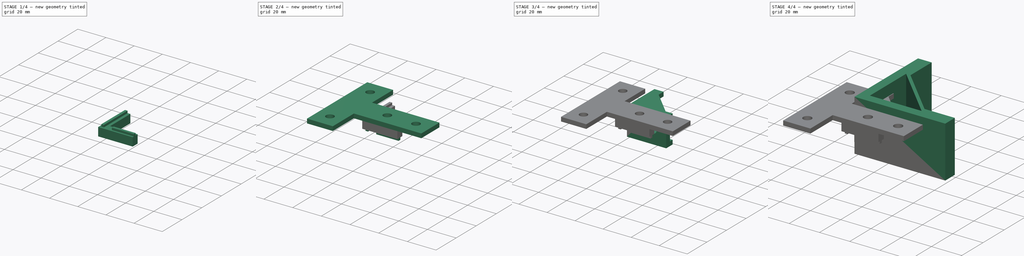
[diagram: build sequence overview — one tinted view per stage of 4, left to right]
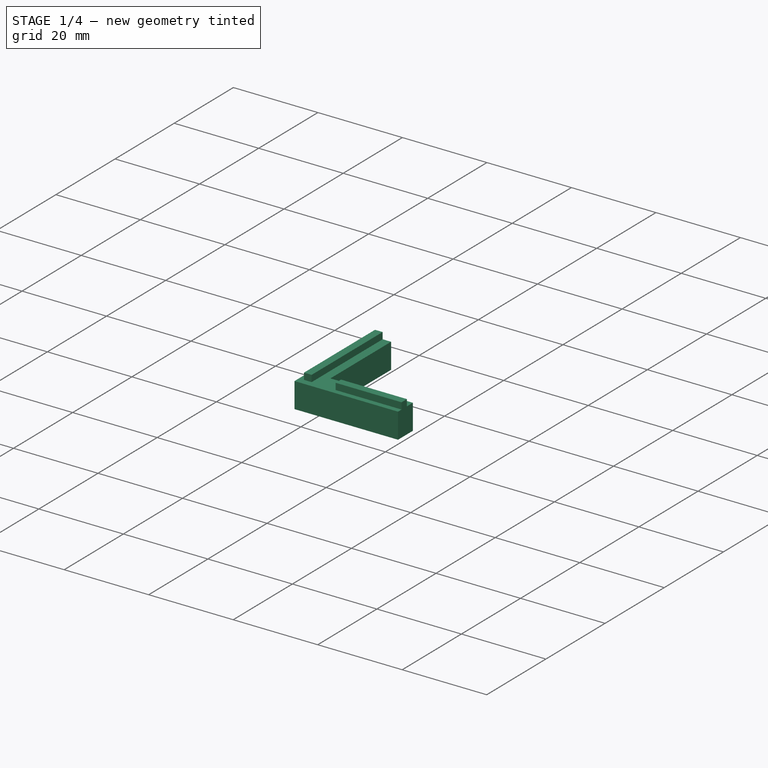
[diagram: stage 1 of 4 — iso view after this stage's code; geometry added in this stage tinted green]
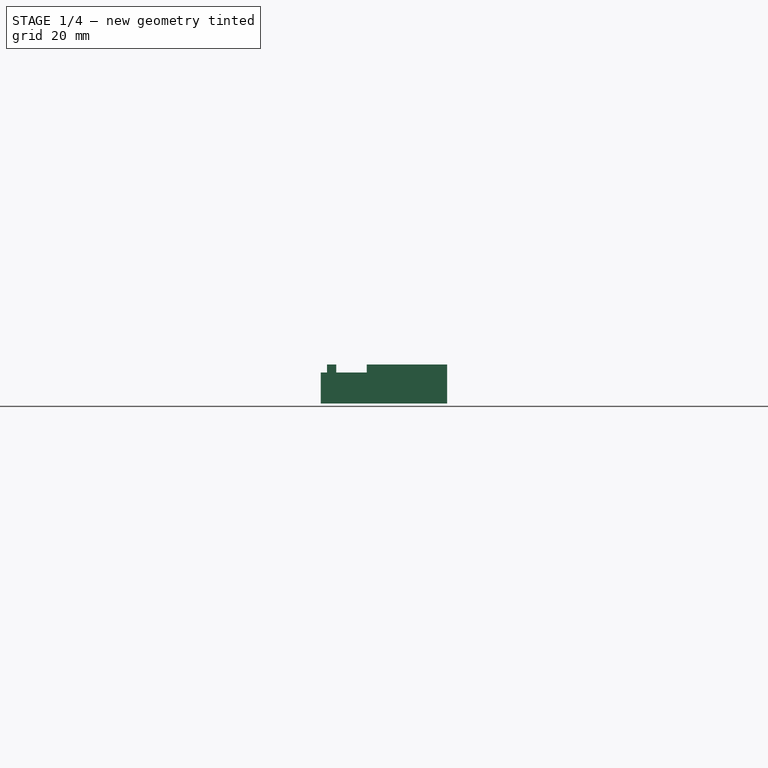
[diagram: stage 1 of 4 — front view after this stage's code; geometry added in this stage tinted green]
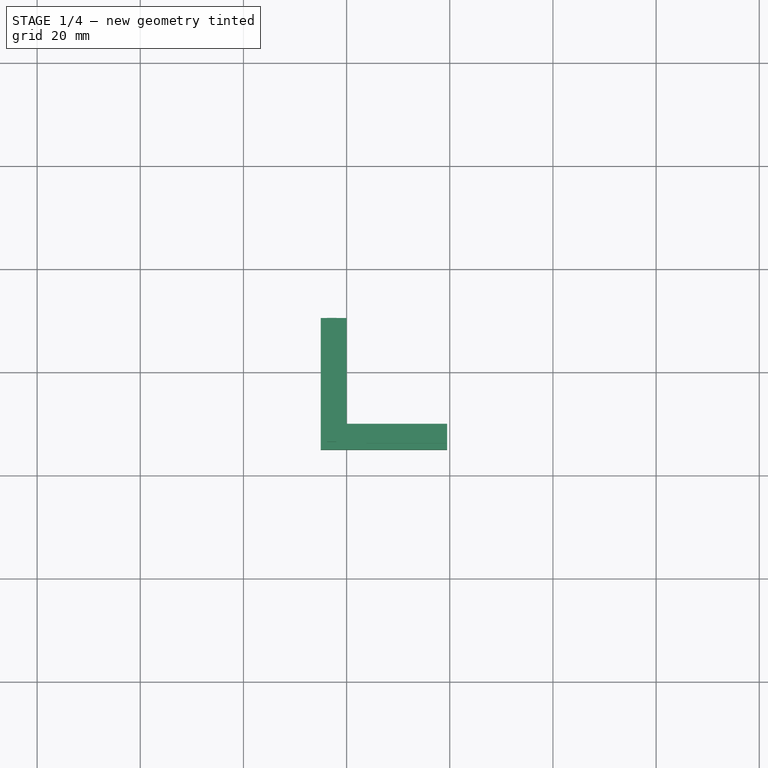
[diagram: stage 1 of 4 — top view after this stage's code; geometry added in this stage tinted green]
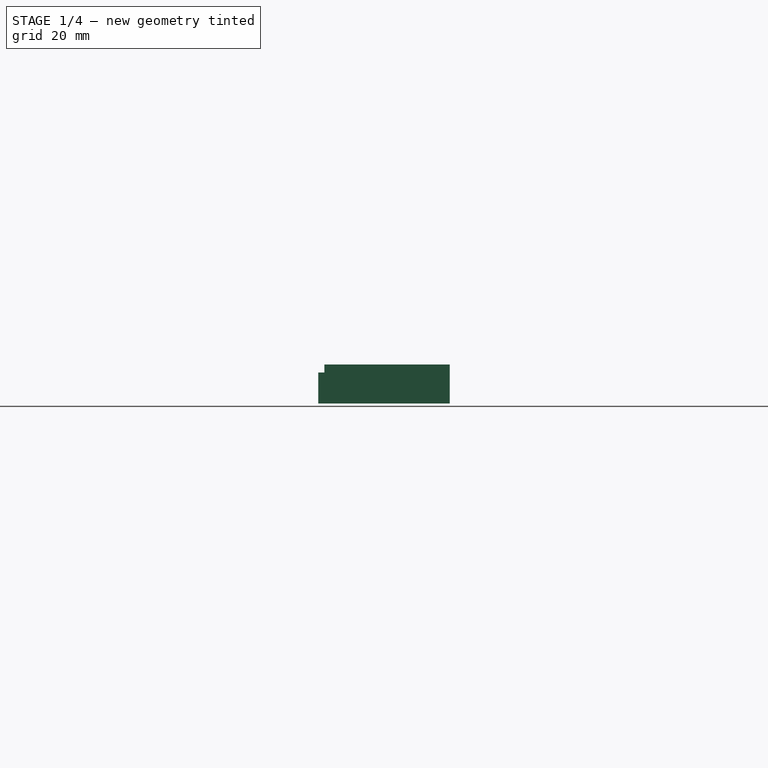
[diagram: stage 1 of 4 — right view after this stage's code; geometry added in this stage tinted green]
FCSTD DOCUMENT  (FreeCAD 1.0R39109 (Git))
Label: 2020 Parts
License: All rights reserved
objects: Sketcher::SketchObject×7, PartDesign::Pad×5, PartDesign::Body×4, PartDesign::Pocket×2, PartDesign::Mirrored×2, PartDesign::Plane×1
note: 44 computed .brp shape members not serialized (recipe doc carries the construction recipe); baked Part::Feature solids carry a one-line shape summary decoded from their .brp

FEATURE [PartDesign::Body] Body002  label="TPDD-2020T-"
  AllowCompound = true
  Group = -> [Sketch004,Pad002]
  Origin = -> Origin002
  Tip = -> Pad002
FEATURE [Sketcher::SketchObject] Sketch005
  ArcFitTolerance = 1e-06
  AttachmentSupport = -> [XY_Plane003]
  FullyConstrained = true
  MakeInternals = false
  MapMode = 5
  sketch-geometry (6):
    g0: LineSegment StartX=-5 StartY=30.5 StartZ=0 EndX=-5 EndY=5 EndZ=0
    g1: LineSegment StartX=-5 StartY=5 StartZ=0 EndX=19.5 EndY=5 EndZ=0
    g2: LineSegment StartX=19.5 StartY=5 StartZ=0 EndX=19.5 EndY=10 EndZ=0
    g3: LineSegment StartX=19.5 StartY=10 StartZ=0 EndX=0 EndY=10 EndZ=0
    g4: LineSegment StartX=0 StartY=10 StartZ=0 EndX=0 EndY=30.5 EndZ=0
    g5: LineSegment StartX=0 StartY=30.5 StartZ=0 EndX=-5 EndY=30.5 EndZ=0
  constraints (18):
    c: Vertical(g0)
    c: Coincident(g0,g1)
    c: Horizontal(g1)
    c: Coincident(g1,g2)
    c: Vertical(g2)
    c: Coincident(g2,g3)
    c: Coincident(g3,g4)
    c: Coincident(g4,g5)
    c: Coincident(g5,g0)
    c: Horizontal(g5)
    c: Vertical(g4)
    c: Horizontal(g3)
    c: DistanceY(g2,g2) = 5
    c: Equal(g2,g5)
    c: DistanceX(g1,g1) = 24.5
    c: DistanceY(g0,g0) = 25.5
    c: DistanceY(g-1,g2) = 10
    c: PointOnObject(g3,g-2)
FEATURE [PartDesign::Pad] Pad003
  Direction = (0,0,1)
  Length = 6
  Length2 = 10
  Midplane = true
  Profile = -> Sketch005
  ReferenceAxis = -> Sketch005 [N_Axis]
  Suppressed = false
  Type = 0
FEATURE [Sketcher::SketchObject] Sketch006
  ArcFitTolerance = 1e-06
  AttachmentSupport = -> [Pad003]
  ExternalGeometry = -> [Sketch005]
  FullyConstrained = true
  MakeInternals = false
  MapMode = 5
  Placement = pos=(0,0,3) rot=(0,0,1;0rad)
  sketch-geometry (8):
    g0: LineSegment StartX=-3.8 StartY=30.5 StartZ=0 EndX=-2 EndY=30.5 EndZ=0
    g1: LineSegment StartX=-2 StartY=30.5 StartZ=0 EndX=-2 EndY=6.5 EndZ=0
    g2: LineSegment StartX=-2 StartY=6.5 StartZ=0 EndX=-3.8 EndY=6.5 EndZ=0
    g3: LineSegment StartX=-3.8 StartY=6.5 StartZ=0 EndX=-3.8 EndY=30.5 EndZ=0
    g4: LineSegment StartX=3.9 StartY=8 StartZ=0 EndX=3.9 EndY=6.2 EndZ=0
    g5: LineSegment StartX=3.9 StartY=6.2 StartZ=0 EndX=19.5 EndY=6.2 EndZ=0
    g6: LineSegment StartX=19.5 StartY=6.2 StartZ=0 EndX=19.5 EndY=8 EndZ=0
    g7: LineSegment StartX=19.5 StartY=8 StartZ=0 EndX=3.9 EndY=8 EndZ=0
  constraints (24):
    c: Coincident(g0,g1)
    c: Coincident(g1,g2)
    c: Coincident(g2,g3)
    c: Coincident(g3,g0)
    c: Horizontal(g0)
    c: Horizontal(g2)
    c: Vertical(g1)
    c: Vertical(g3)
    c: Coincident(g4,g5)
    c: Coincident(g5,g6)
    c: Coincident(g6,g7)
    c: Coincident(g7,g4)
    c: Vertical(g4)
    c: Vertical(g6)
    c: Horizontal(g5)
    c: Horizontal(g7)
    c: Equal(g0,g6)
    c: Horizontal(g0,g-3)
    c: DistanceY(g6,g-4) = 2
    c: Distance(g6,g6) = 1.8
    c: Vertical(g6,g-4)
    c: DistanceX(g5,g5) = 15.6
    c: DistanceY(g1,g1) = 24
    c: Distance(g0,g-3) = 2
FEATURE [PartDesign::Pad] Pad004
  BaseFeature = -> Pad003
  Direction = (0,0,1)
  Length = 1.55
  Length2 = 10
  Profile = -> Sketch006
  ReferenceAxis = -> Sketch006 [N_Axis]
  Suppressed = false
  Type = 0
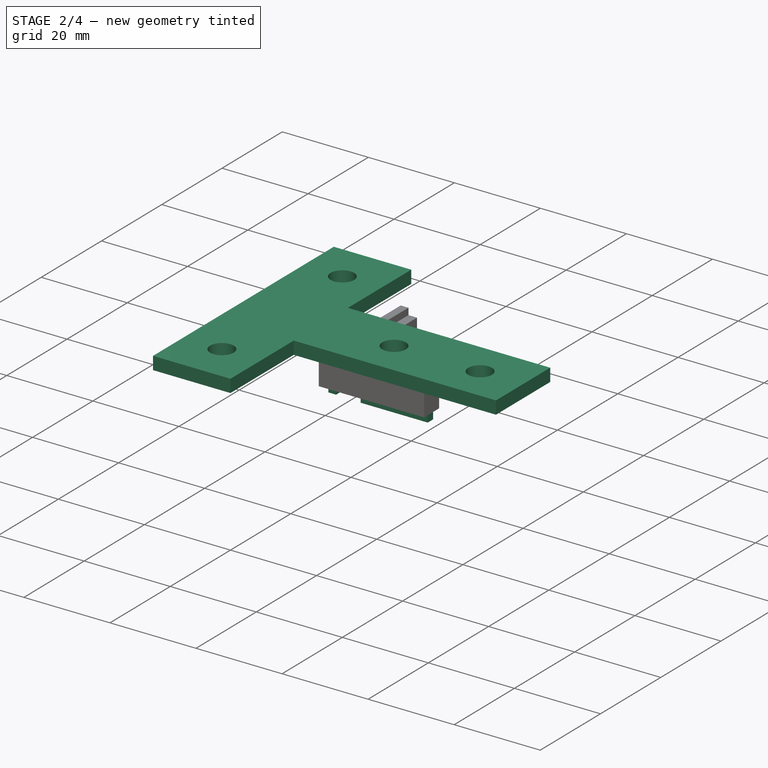
[diagram: stage 2 of 4 — iso view after this stage's code; geometry added in this stage tinted green]
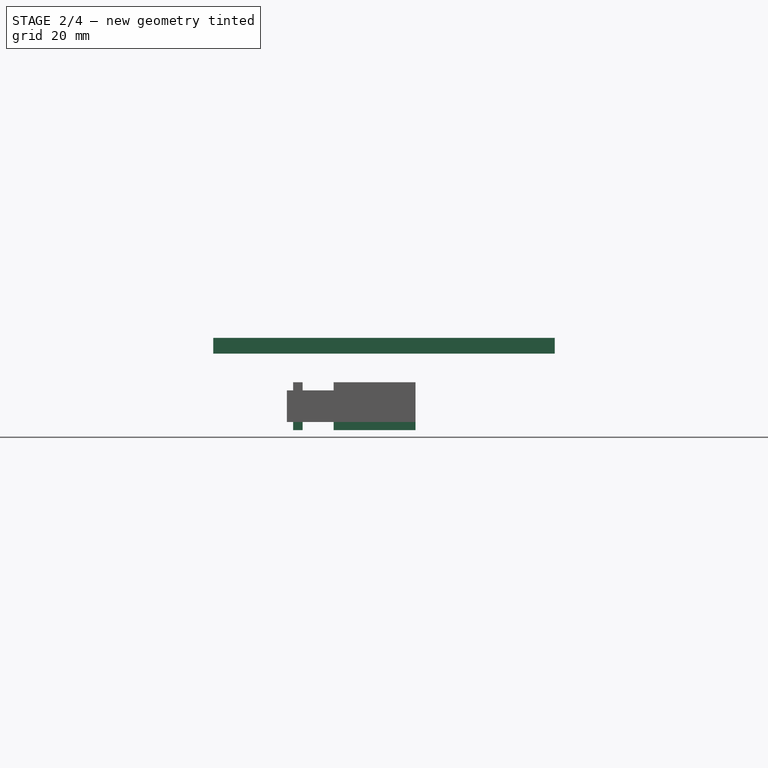
[diagram: stage 2 of 4 — front view after this stage's code; geometry added in this stage tinted green]
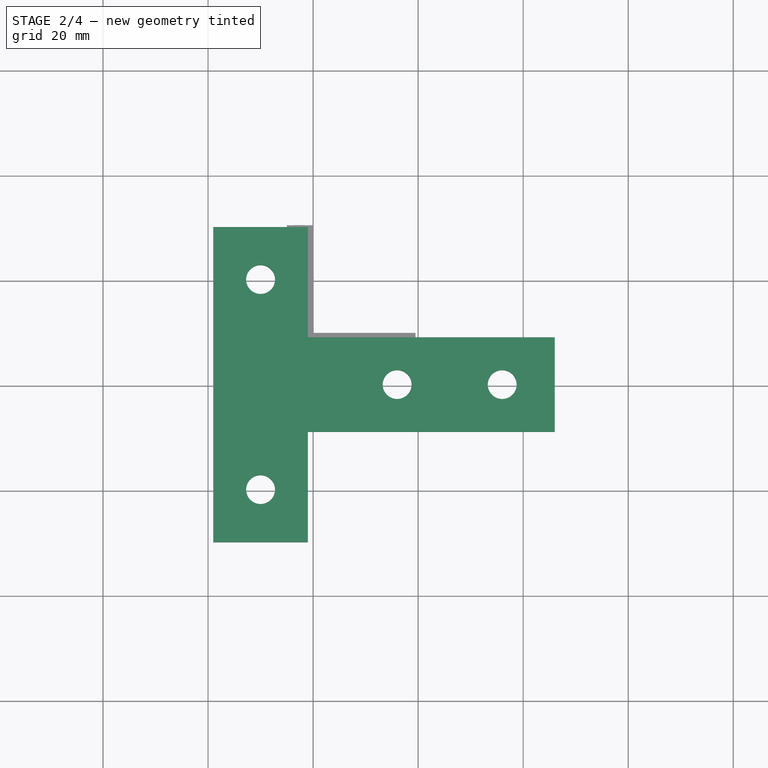
[diagram: stage 2 of 4 — top view after this stage's code; geometry added in this stage tinted green]
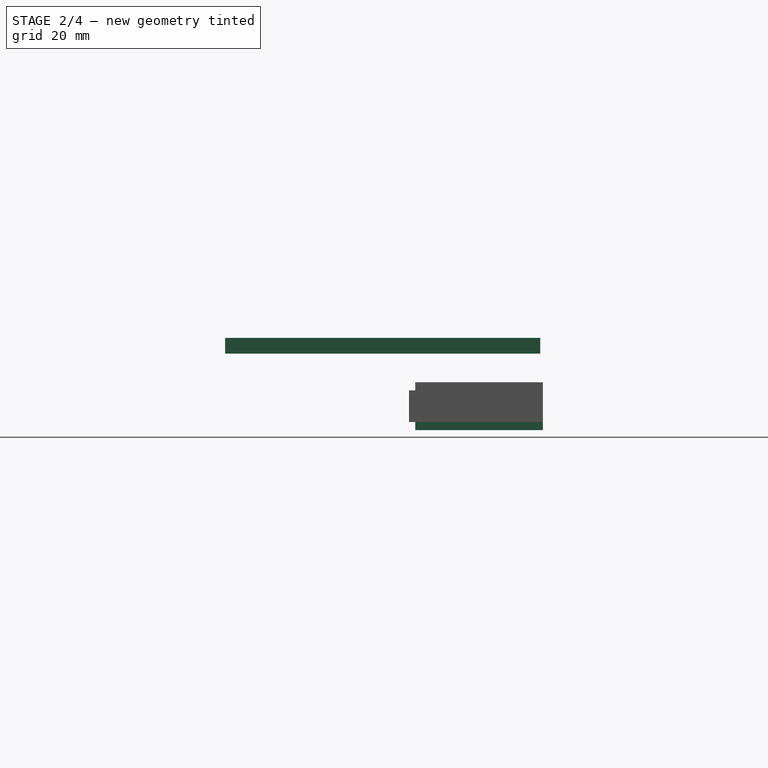
[diagram: stage 2 of 4 — right view after this stage's code; geometry added in this stage tinted green]
FEATURE [PartDesign::Body] Body001  label="TPDB-2020-"
  AllowCompound = true
  Group = -> [Sketch001,Pad001,Sketch002,Pocket,Sketch003,Pocket001,DatumPlane,Mirrored]
  Origin = -> Origin001
  Tip = -> Mirrored
FEATURE [Sketcher::SketchObject] Sketch004
  ArcFitTolerance = 1e-06
  AttachmentOffset = pos=(0,0,10) rot=(0,0,1;0rad)
  AttachmentSupport = -> [XY_Plane002]
  FullyConstrained = true
  MakeInternals = false
  MapMode = 5
  Placement = pos=(0,0,10) rot=(0,0,1;0rad)
  sketch-geometry (14):
    g0: LineSegment StartX=-19 StartY=30 StartZ=0 EndX=-1 EndY=30 EndZ=0
    g1: LineSegment StartX=-1 StartY=30 StartZ=0 EndX=-1 EndY=9 EndZ=0
    g2: LineSegment StartX=-1 StartY=9 StartZ=0 EndX=46 EndY=9 EndZ=0
    g3: LineSegment StartX=46 StartY=9 StartZ=0 EndX=46 EndY=-9 EndZ=0
    g4: LineSegment StartX=46 StartY=-9 StartZ=0 EndX=-1 EndY=-9 EndZ=0
    g5: LineSegment StartX=-1 StartY=-9 StartZ=0 EndX=-1 EndY=-30 EndZ=0
    g6: LineSegment StartX=-1 StartY=-30 StartZ=0 EndX=-19 EndY=-30 EndZ=0
    g7: LineSegment StartX=-19 StartY=-30 StartZ=0 EndX=-19 EndY=30 EndZ=0
    g8: GeomPoint X=-19 Y=0 Z=0
    g9: Circle CenterX=-10 CenterY=20 CenterZ=0 NormalX=0 NormalY=0 NormalZ=1 AngleXU=0 Radius=2.75
    g10: Circle CenterX=-10 CenterY=-20 CenterZ=0 NormalX=0 NormalY=0 NormalZ=1 AngleXU=0 Radius=2.75
    g11: Circle CenterX=16 CenterY=0 CenterZ=0 NormalX=0 NormalY=0 NormalZ=1 AngleXU=0 Radius=2.75
    g12: Circle CenterX=36 CenterY=0 CenterZ=0 NormalX=0 NormalY=0 NormalZ=1 AngleXU=0 Radius=2.75
    g13: LineSegment [constr] StartX=-10 StartY=30 StartZ=0 EndX=-10 EndY=-30 EndZ=0
  constraints (39):
    c: Horizontal(g0)
    c: Coincident(g0,g1)
    c: Coincident(g1,g2)
    c: Coincident(g2,g3)
    c: Vertical(g3)
    c: Coincident(g3,g4)
    c: Horizontal(g4)
    c: Coincident(g4,g5)
    c: Coincident(g5,g6)
    c: Horizontal(g6)
    c: Coincident(g6,g7)
    c: Coincident(g7,g0)
    c: Vertical(g7)
    c: Vertical(g1)
    c: Vertical(g5)
    c: Horizontal(g2)
    c: Vertical(g1,g4)
    c: Equal(g0,g3)
    c: Distance(g7,g7) = 60
    c: Distance(g0,g0) = 18
    c: DistanceX(g6,g3) = 65
    c: Equal(g5,g1)
    c: Symmetric(g7,g7,g8)
    c: PointOnObject(g8,g-1)
    c: Distance(g0,g-2) = 1
    c: PointOnObject(g11,g-1)
    c: PointOnObject(g12,g-1)
    c: Equal(g9,g11)
    c: Equal(g11,g12)
    c: Equal(g12,g10)
    c: Symmetric(g0,g0,g13)
    c: Symmetric(g6,g6,g13)
    c: PointOnObject(g10,g13)
    c: PointOnObject(g9,g13)
    c: Distance(g9,g-1) = 20
    c: Distance(g10,g-1) = 20
    c: DistanceX(g11,g12) = 20
    c: Distance(g11,g7) = 35
    c: Diameter(g12) = 5.5
FEATURE [PartDesign::Pad] Pad002
  Direction = (0,0,1)
  Length = 3
  Length2 = 10
  Profile = -> Sketch004
  ReferenceAxis = -> Sketch004 [N_Axis]
  Suppressed = false
  Type = 0
FEATURE [PartDesign::Mirrored] Mirrored001
  BaseFeature = -> Pad004
  MirrorPlane = -> XY_Plane003
  Originals = -> [Pad004]
  Suppressed = false
  TransformMode = 0
FEATURE [PartDesign::Body] Body003  label="TPDG-D5-"
  AllowCompound = true
  Group = -> [Sketch005,Pad003,Sketch006,Pad004,Mirrored001]
  Origin = -> Origin003
  Tip = -> Mirrored001
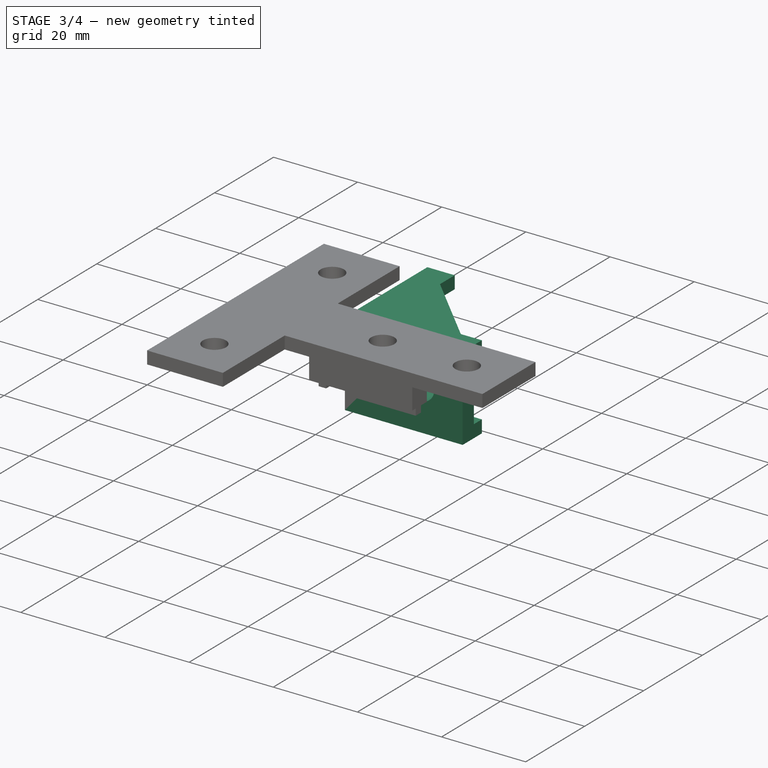
[diagram: stage 3 of 4 — iso view after this stage's code; geometry added in this stage tinted green]
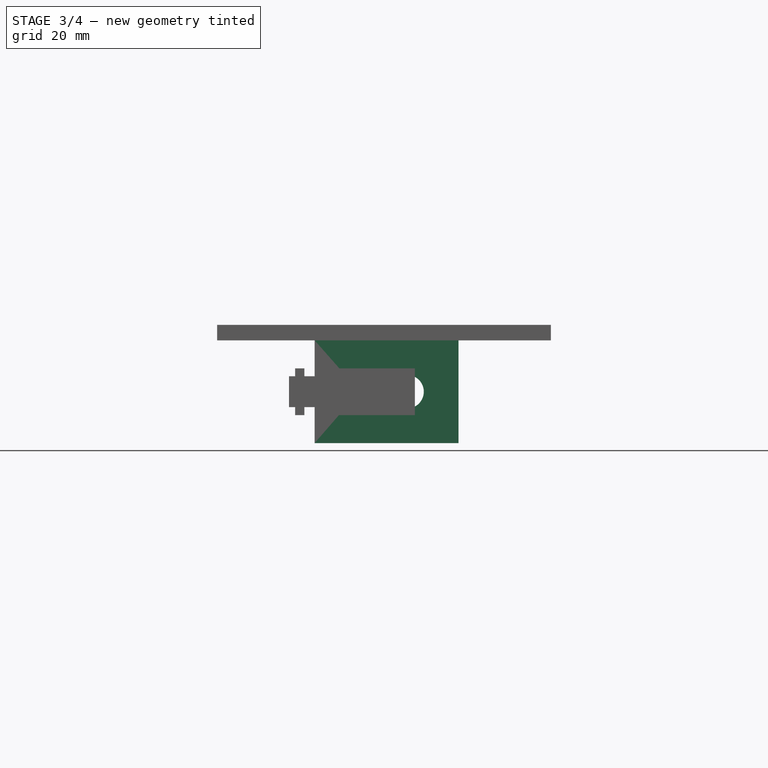
[diagram: stage 3 of 4 — front view after this stage's code; geometry added in this stage tinted green]
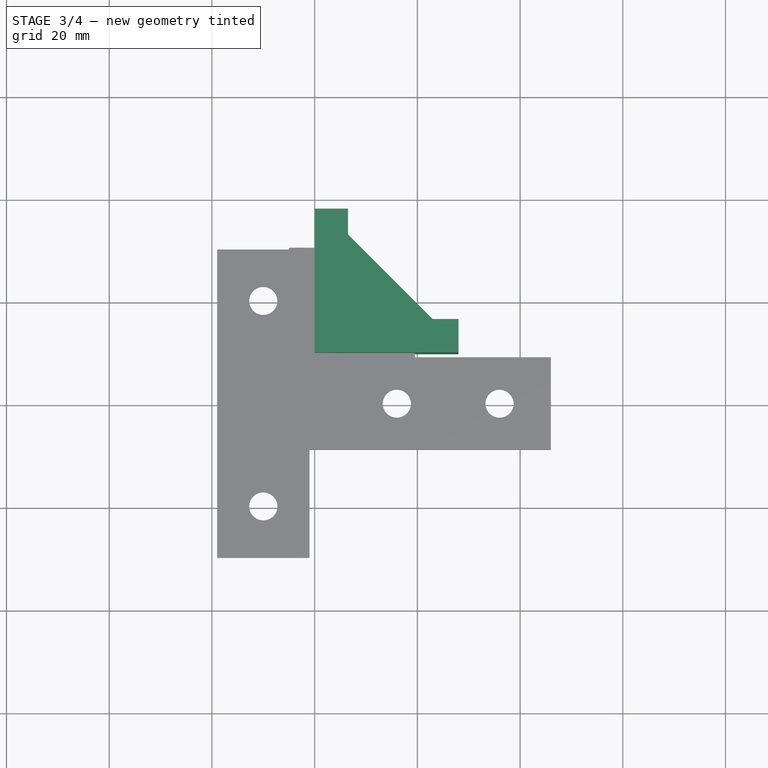
[diagram: stage 3 of 4 — top view after this stage's code; geometry added in this stage tinted green]
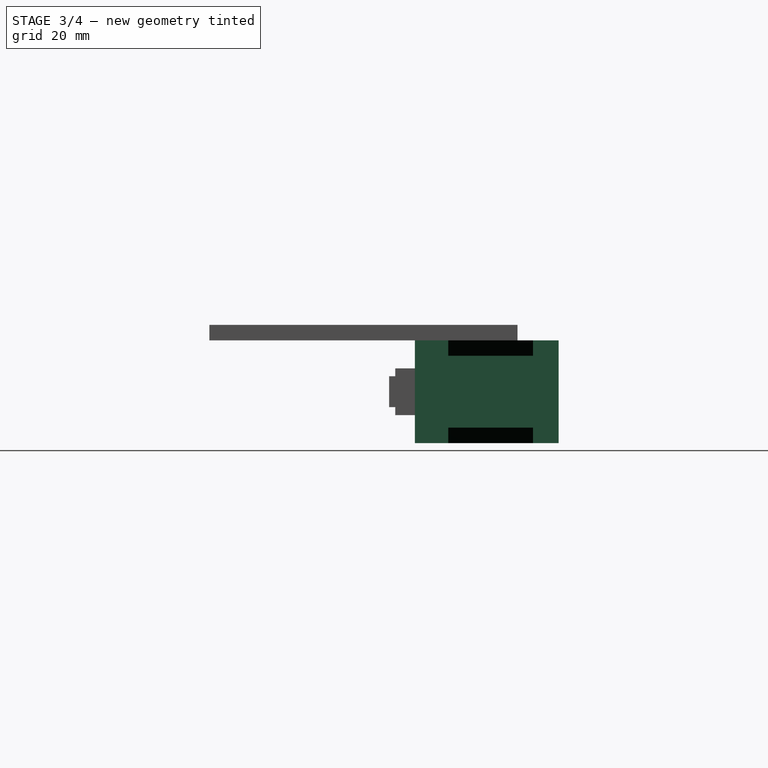
[diagram: stage 3 of 4 — right view after this stage's code; geometry added in this stage tinted green]
FEATURE [PartDesign::Body] Body  label="TPDC-6034-"
  AllowCompound = true
  Group = -> [Sketch,Pad]
  Origin = -> Origin
  Tip = -> Pad
FEATURE [Sketcher::SketchObject] Sketch001
  ArcFitTolerance = 1e-06
  AttachmentSupport = -> [XY_Plane001]
  FullyConstrained = true
  MakeInternals = false
  MapMode = 5
  sketch-geometry (9):
    g0: LineSegment StartX=0 StartY=10 StartZ=0 EndX=28 EndY=10 EndZ=0
    g1: LineSegment [constr] StartX=28 StartY=10 StartZ=0 EndX=28 EndY=38 EndZ=0
    g2: LineSegment [constr] StartX=28 StartY=38 StartZ=0 EndX=0 EndY=38 EndZ=0
    g3: LineSegment StartX=0 StartY=38 StartZ=0 EndX=0 EndY=10 EndZ=0
    g4: LineSegment StartX=0 StartY=38 StartZ=0 EndX=6.5 EndY=38 EndZ=0
    g5: LineSegment StartX=6.5 StartY=38 StartZ=0 EndX=6.5 EndY=33 EndZ=0
    g6: LineSegment StartX=6.5 StartY=33 StartZ=0 EndX=23 EndY=16.5 EndZ=0
    g7: LineSegment StartX=23 StartY=16.5 StartZ=0 EndX=28 EndY=16.5 EndZ=0
    g8: LineSegment StartX=28 StartY=16.5 StartZ=0 EndX=28 EndY=10 EndZ=0
  constraints (26):
    c: Coincident(g0,g1)
    c: Coincident(g1,g2)
    c: Coincident(g2,g3)
    c: Coincident(g3,g0)
    c: Horizontal(g0)
    c: Horizontal(g2)
    c: Vertical(g1)
    c: Vertical(g3)
    c: PointOnObject(g0,g-2)
    c: Equal(g0,g3)
    c: Distance(g0,g0) = 28
    c: DistanceY(g-1,g0) = 10
    c: Coincident(g2,g4)
    c: PointOnObject(g4,g2)
    c: Coincident(g4,g5)
    c: Vertical(g5)
    c: Coincident(g5,g6)
    c: Coincident(g6,g7)
    c: PointOnObject(g7,g1)
    c: Horizontal(g7)
    c: Coincident(g7,g8)
    c: Coincident(g8,g0)
    c: Equal(g4,g8)
    c: Equal(g5,g7)
    c: Distance(g8,g8) = 6.5
    c: Distance(g5,g5) = 5
FEATURE [PartDesign::Pad] Pad001
  Direction = (0,0,1)
  Length = 20
  Length2 = 10
  Midplane = true
  Profile = -> Sketch001
  ReferenceAxis = -> Sketch001 [N_Axis]
  Suppressed = false
  Type = 0
FEATURE [Sketcher::SketchObject] Sketch002
  ArcFitTolerance = 1e-06
  AttachmentSupport = -> [XY_Plane001]
  FullyConstrained = true
  MakeInternals = false
  MapMode = 5
  sketch-geometry (4):
    g0: LineSegment StartX=3.8 StartY=13.8 StartZ=0 EndX=33.8 EndY=13.8 EndZ=0
    g1: LineSegment StartX=33.8 StartY=13.8 StartZ=0 EndX=33.8 EndY=43.8 EndZ=0
    g2: LineSegment StartX=33.8 StartY=43.8 StartZ=0 EndX=3.8 EndY=43.8 EndZ=0
    g3: LineSegment StartX=3.8 StartY=43.8 StartZ=0 EndX=3.8 EndY=13.8 EndZ=0
  constraints (12):
    c: Coincident(g0,g1)
    c: Coincident(g1,g2)
    c: Coincident(g2,g3)
    c: Coincident(g3,g0)
    c: Horizontal(g0)
    c: Horizontal(g2)
    c: Vertical(g1)
    c: Vertical(g3)
    c: Distance(g2,g-2) = 3.8
    c: Distance(g0,g-1) = 13.8
    c: Equal(g0,g3)
    c: DistanceY(g1,g1) = 30
FEATURE [PartDesign::Pocket] Pocket
  BaseFeature = -> Pad001
  Direction = (0,0,-1)
  Length = 14
  Length2 = 5
  Midplane = true
  Profile = -> Sketch002
  ReferenceAxis = -> Sketch002 [N_Axis]
  Suppressed = false
  Type = 0
FEATURE [Sketcher::SketchObject] Sketch003
  ArcFitTolerance = 1e-06
  AttachmentSupport = -> [XZ_Plane001]
  FullyConstrained = true
  MakeInternals = false
  MapMode = 5
  Placement = pos=(0,0,0) rot=(1,0,0;1.5708rad)
  sketch-geometry (4):
    g0: ArcOfCircle CenterX=12 CenterY=0 CenterZ=0 NormalX=0 NormalY=0 NormalZ=1 AngleXU=0 Radius=3.25 StartAngle=1.5708 EndAngle=4.71239
    g1: ArcOfCircle CenterX=18 CenterY=0 CenterZ=0 NormalX=0 NormalY=0 NormalZ=1 AngleXU=0 Radius=3.25 StartAngle=4.71239 EndAngle=7.85398
    g2: LineSegment StartX=12 StartY=3.25 StartZ=0 EndX=18 EndY=3.25 EndZ=0
    g3: LineSegment StartX=12 StartY=-3.25 StartZ=0 EndX=18 EndY=-3.25 EndZ=0
  constraints (10):
    c: Tangent(g0,g2) = 1.5708
    c: Tangent(g0,g3) = -1.5708
    c: Tangent(g1,g2) = 1.5708
    c: Tangent(g1,g3) = -1.5708
    c: Equal(g0,g1)
    c: Horizontal(g3)
    c: PointOnObject(g0,g-1)
    c: Distance(g0,g-1) = 12
    c: DistanceX(g3,g3) = 6
    c: Radius(g1) = 3.25
FEATURE [PartDesign::Pocket] Pocket001
  BaseFeature = -> Pocket
  Direction = (0,1,-2e-16)
  Length = 5
  Length2 = 5
  Profile = -> Sketch003
  ReferenceAxis = -> Sketch003 [N_Axis]
  Suppressed = false
  Type = 1
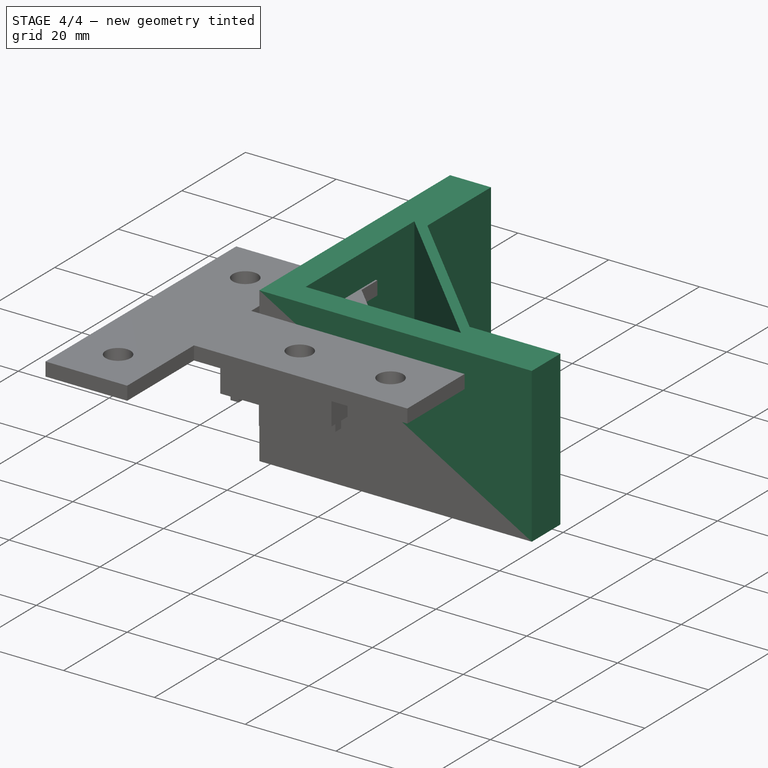
[diagram: stage 4 of 4 — iso view after this stage's code; geometry added in this stage tinted green]
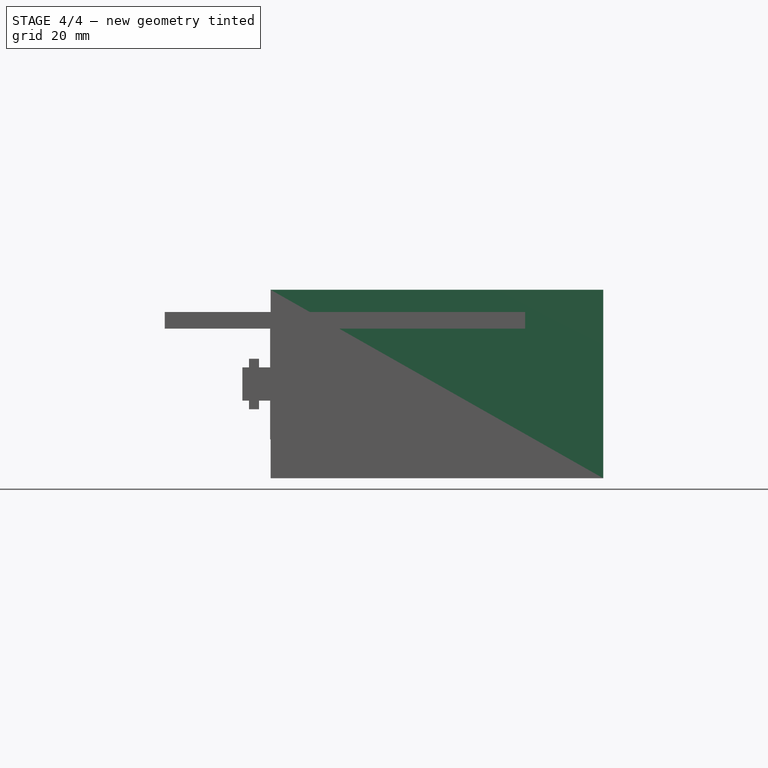
[diagram: stage 4 of 4 — front view after this stage's code; geometry added in this stage tinted green]
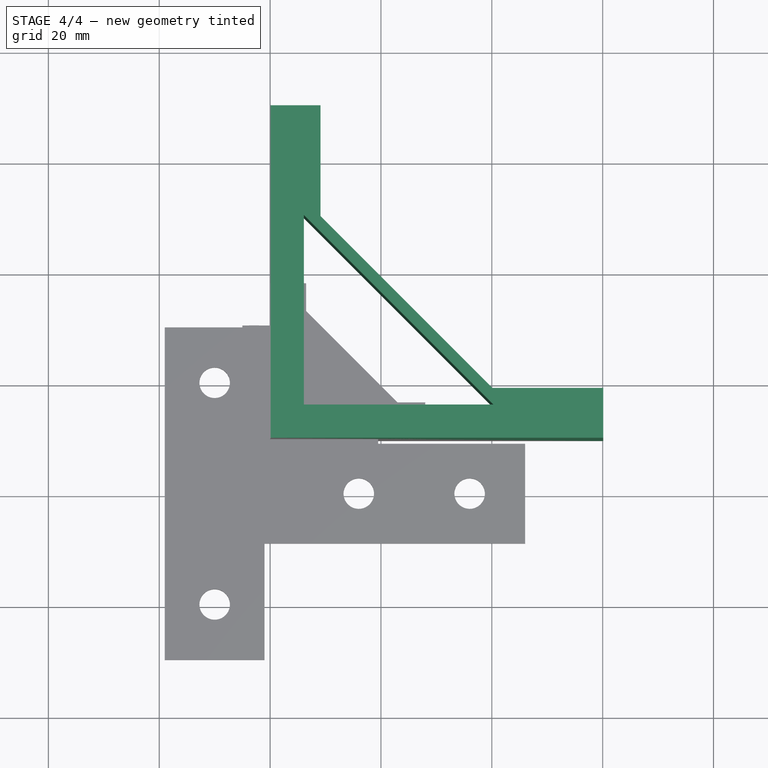
[diagram: stage 4 of 4 — top view after this stage's code; geometry added in this stage tinted green]
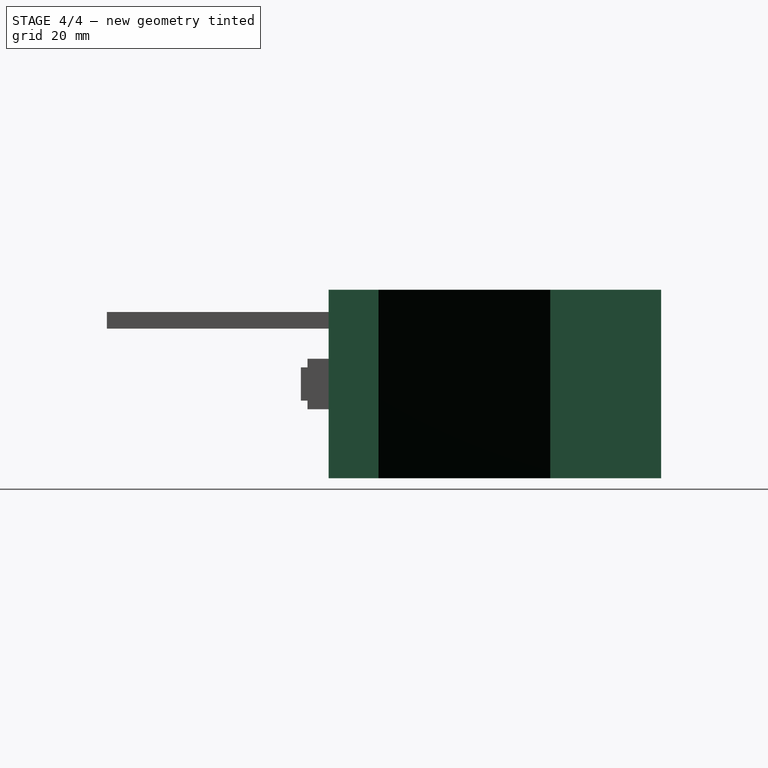
[diagram: stage 4 of 4 — right view after this stage's code; geometry added in this stage tinted green]
FEATURE [Sketcher::SketchObject] Sketch
  ArcFitTolerance = 1e-06
  AttachmentSupport = -> [XY_Plane]
  FullyConstrained = true
  MakeInternals = false
  MapMode = 5
  sketch-geometry (13):
    g0: LineSegment StartX=0.1 StartY=70 StartZ=0 EndX=0.1 EndY=10 EndZ=0
    g1: LineSegment StartX=0.1 StartY=10 StartZ=0 EndX=60.1 EndY=10 EndZ=0
    g2: LineSegment StartX=60.1 StartY=10 StartZ=0 EndX=60.1 EndY=19 EndZ=0
    g3: LineSegment [constr] StartX=60.1 StartY=19 StartZ=0 EndX=9.1 EndY=19 EndZ=0
    g4: LineSegment [constr] StartX=9.1 StartY=19 StartZ=0 EndX=9.1 EndY=70 EndZ=0
    g5: LineSegment StartX=9.1 StartY=70 StartZ=0 EndX=0.1 EndY=70 EndZ=0
    g6: LineSegment StartX=9.1 StartY=70 StartZ=0 EndX=9.1 EndY=50 EndZ=0
    g7: LineSegment StartX=9.1 StartY=50 StartZ=0 EndX=40.1 EndY=19 EndZ=0
    g8: LineSegment StartX=40.1 StartY=19 StartZ=0 EndX=60.1 EndY=19 EndZ=0
    g9: LineSegment StartX=6.1 StartY=50.1716 StartZ=0 EndX=6.1 EndY=16 EndZ=0
    g10: LineSegment StartX=6.1 StartY=16 StartZ=0 EndX=40.2716 EndY=16 EndZ=0
    g11: LineSegment StartX=40.2716 StartY=16 StartZ=0 EndX=6.1 EndY=50.1716 EndZ=0
    g12: LineSegment [constr] StartX=9.1 StartY=19 StartZ=0 EndX=0.1 EndY=10 EndZ=0
  constraints (37):
    c: Vertical(g0)
    c: Coincident(g0,g1)
    c: Horizontal(g1)
    c: Coincident(g1,g2)
    c: Vertical(g2)
    c: Coincident(g2,g3)
    c: Horizontal(g3)
    c: Coincident(g3,g4)
    c: Vertical(g4)
    c: Coincident(g4,g5)
    c: Coincident(g5,g0)
    c: Horizontal(g5)
    c: Equal(g0,g1)
    c: Equal(g5,g2)
    c: DistanceX(g1,g1) = 60
    c: DistanceY(g2,g2) = 9
    c: DistanceX(g-1,g0) = 0.1
    c: DistanceY(g-1,g0) = 10
    c: Coincident(g4,g6)
    c: PointOnObject(g6,g4)
    c: Coincident(g6,g7)
    c: PointOnObject(g7,g3)
    c: Coincident(g7,g8)
    c: Coincident(g8,g2)
    c: Equal(g8,g6)
    c: Vertical(g9)
    c: Coincident(g9,g10)
    c: Horizontal(g10)
    c: Coincident(g10,g11)
    c: Coincident(g11,g9)
    c: Coincident(g12,g3)
    c: Coincident(g12,g0)
    c: PointOnObject(g9,g12)
    c: Equal(g10,g9)
    c: Distance(g9,g0) = 6
    c: Distance(g7,g11) = 2
    c: DistanceX(g8,g8) = 20
FEATURE [PartDesign::Pad] Pad
  Direction = (0,0,1)
  Length = 34
  Length2 = 10
  Midplane = true
  Profile = -> Sketch
  ReferenceAxis = -> Sketch [N_Axis]
  Suppressed = false
  Type = 0
FEATURE [PartDesign::Plane] DatumPlane
  AttachmentOffset = pos=(0,10,0) rot=(1,0,0;0.785398rad)
  AttachmentSupport = -> [Z_Axis001]
  Length = 62.8082
  MapMode = 2
  Placement = pos=(-10,0,0) rot=(0.678598,-0.281085,0.678598;2.59356rad)
  ResizeMode = 0
  Width = 94.8325
FEATURE [PartDesign::Mirrored] Mirrored
  BaseFeature = -> Pocket001
  MirrorPlane = -> DatumPlane
  Originals = -> [Pocket001]
  Suppressed = false
  TransformMode = 0
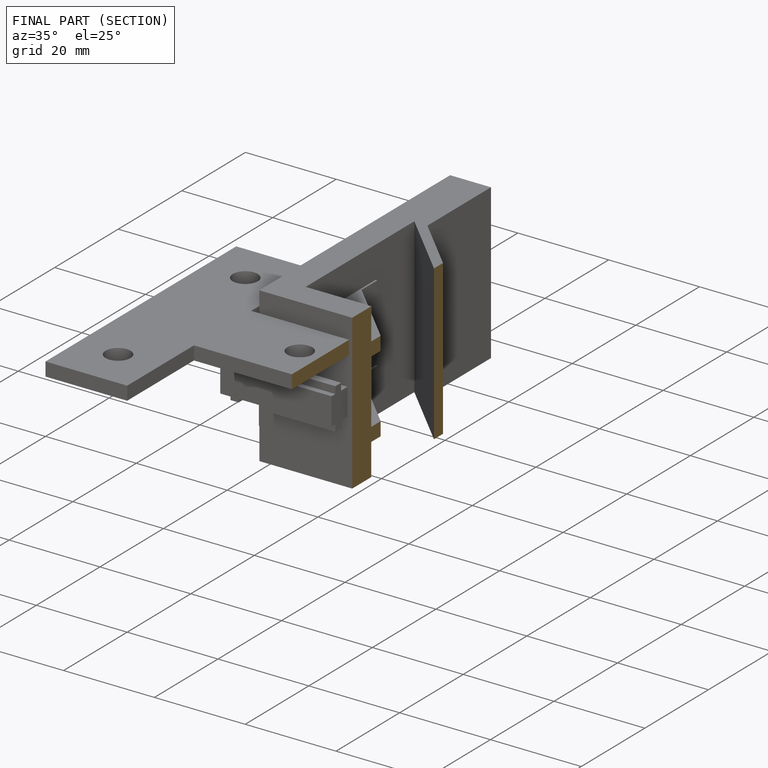
[diagram: finished part — half-section view (interior)]
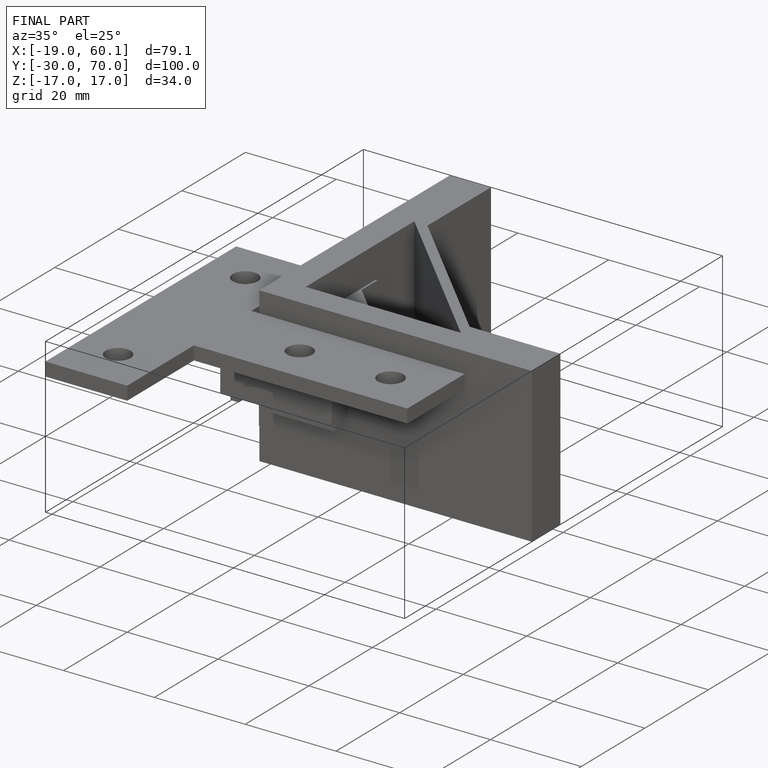
[diagram: finished part — iso view with bounding-box wireframe]
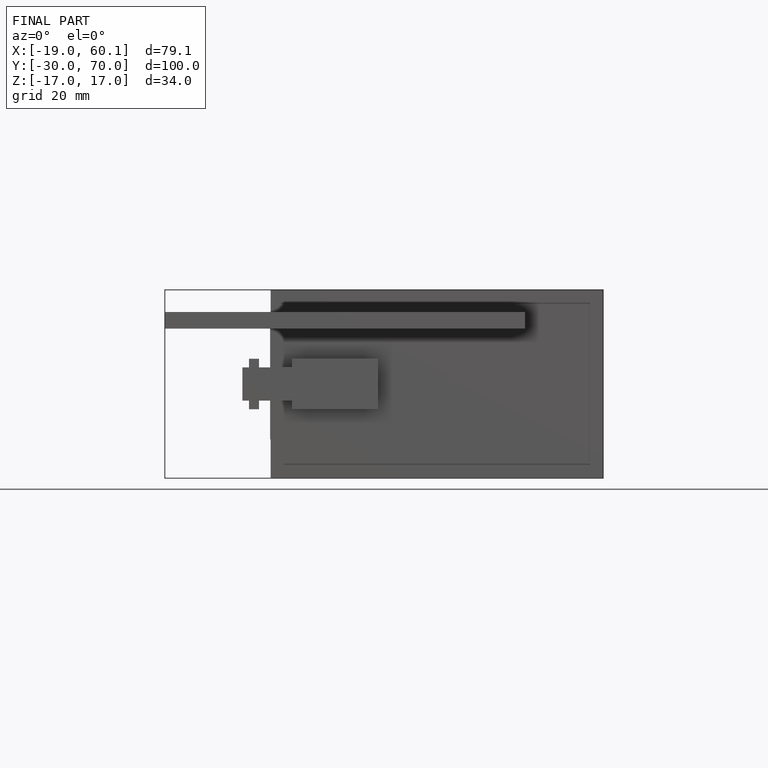
[diagram: finished part — front view with bounding-box wireframe]
